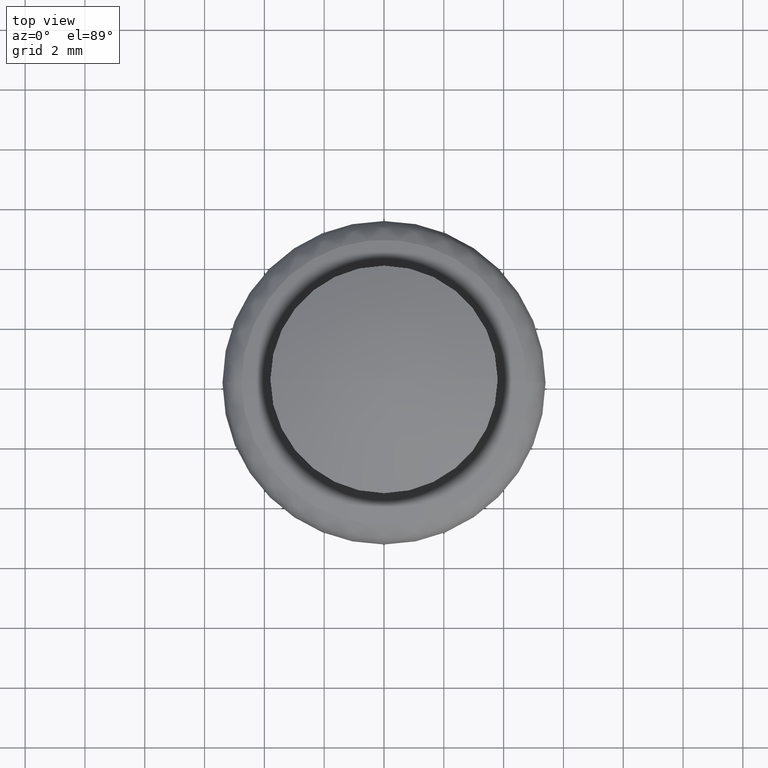
[diagram: clean part render]
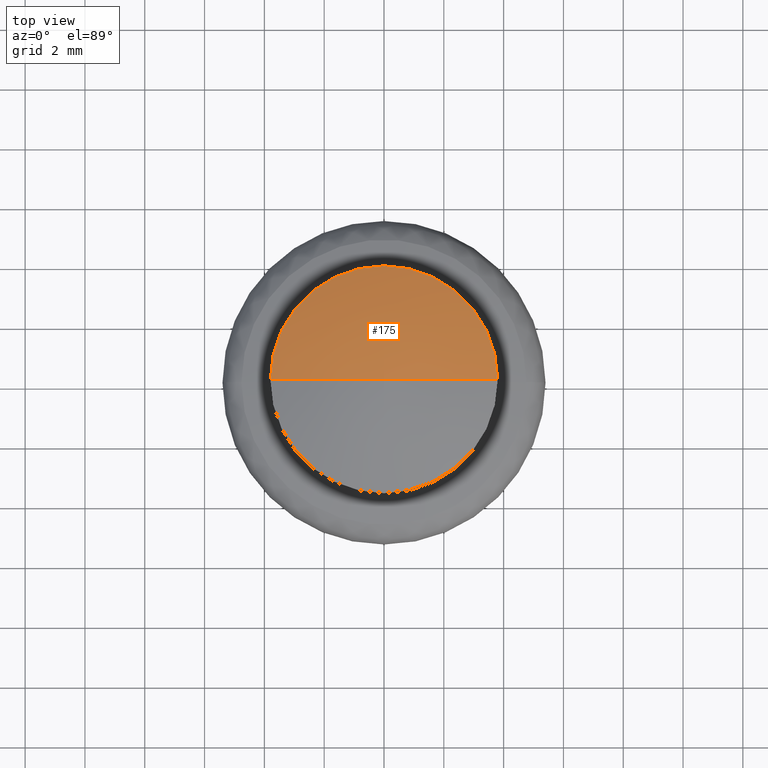
[diagram: same view with one face highlighted and labeled with its STEP entity id]
A machine part, top view. The second image highlights one B-rep face of the part: STEP entity #175.
In plain terms, the highlighted spherical surface has radius 9.425 mm.
Its self-contained STEP definition (entity closure, byte-faithful):
#175=ADVANCED_FACE('',(#828),#827,.T.);
#827=SPHERICAL_SURFACE('',#1445,9.42500000000E+00);
#828=FACE_OUTER_BOUND('',#1446,.T.);
#1442=CARTESIAN_POINT('',(0.00000000000E+00,0.00000000000E+00,-6.62500000000E+00));
#1443=DIRECTION('',(0.00000000000E+00,0.00000000000E+00,-1.00000000000E+00));
#1444=DIRECTION('',(-1.00000000000E+00,1.22460635382E-16,-0.00000000000E+00));
#1445=AXIS2_PLACEMENT_3D('',#1442,#1443,#1444);
#1446=EDGE_LOOP('',(#1884,#1885,#1886));
#1884=ORIENTED_EDGE('',*,*,#2114,.F.);
#1885=ORIENTED_EDGE('',*,*,#2118,.F.);
#1886=ORIENTED_EDGE('',*,*,#2119,.T.);
#2114=EDGE_CURVE('',#3262,#3263,#3264,.T.);
#2118=EDGE_CURVE('',#3288,#3262,#3289,.T.);
#2119=EDGE_CURVE('',#3288,#3263,#3295,.T.);
#3262=VERTEX_POINT('',#4181);
#3263=VERTEX_POINT('',#4182);
#3264=CIRCLE('',#4186,3.79999757951E+00);
#3288=VERTEX_POINT('',#4195);
#3289=(BOUNDED_CURVE() B_SPLINE_CURVE(2,(#4196,#4197,#4198),.UNSPECIFIED.,.F.,.F.) B_SPLINE_CURVE_WITH_KNOTS((3,3),(0.00000000000E+00,9.99999235073E-01),.UNSPECIFIED.) CURVE() GEOMETRIC_REPRESENTATION_ITEM() RATIONAL_B_SPLINE_CURVE((1.00000000000E+00,9.78549781061E-01,1.00000000000E+00)) REPRESENTATION_ITEM('') );
#3295=(BOUNDED_CURVE() B_SPLINE_CURVE(2,(#4199,#4200,#4201),.UNSPECIFIED.,.F.,.F.) B_SPLINE_CURVE_WITH_KNOTS((3,3),(0.00000000000E+00,1.00000000000E+00),.UNSPECIFIED.) CURVE() GEOMETRIC_REPRESENTATION_ITEM() RATIONAL_B_SPLINE_CURVE((7.50000000000E-01,7.33912335796E-01,7.50000000000E-01)) REPRESENTATION_ITEM('') );
#4181=CARTESIAN_POINT('',(-3.79999757951E+00,0.00000000000E+00,2.00000106642E+00));
#4182=CARTESIAN_POINT('',(3.79999757951E+00,2.96059473233E-16,2.00000106642E+00));
#4183=CARTESIAN_POINT('',(0.00000000000E+00,0.00000000000E+00,2.00000106642E+00));
#4184=DIRECTION('',(-0.00000000000E+00,0.00000000000E+00,-1.00000000000E+00));
#4185=DIRECTION('',(-1.00000000000E+00,-1.22460635382E-16,0.00000000000E+00));
#4186=AXIS2_PLACEMENT_3D('',#4183,#4184,#4185);
#4195=CARTESIAN_POINT('',(-5.77095744239E-16,7.06715115159E-32,2.80000000000E+00));
#4196=CARTESIAN_POINT('',(-5.77095744239E-16,7.06715115159E-32,2.80000000000E+00));
#4197=CARTESIAN_POINT('',(-1.98421071388E+00,2.42987704754E-16,2.80000000000E+00));
#4198=CARTESIAN_POINT('',(-3.80000032872E+00,4.65350454707E-16,1.99999985517E+00));
#4199=CARTESIAN_POINT('',(5.77095744239E-16,-6.57384087684E-32,2.80000000000E+00));
#4200=CARTESIAN_POINT('',(1.98421071388E+00,-4.53823830371E-16,2.80000000000E+00));
#4201=CARTESIAN_POINT('',(3.80000032872E+00,-5.92118946467E-16,1.99999985517E+00));